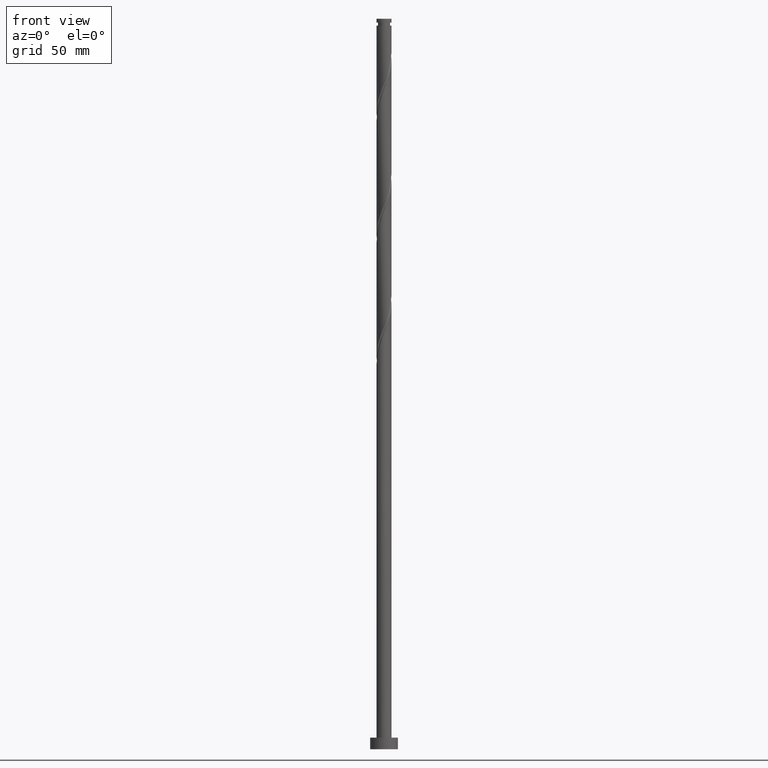
[diagram: clean part render]
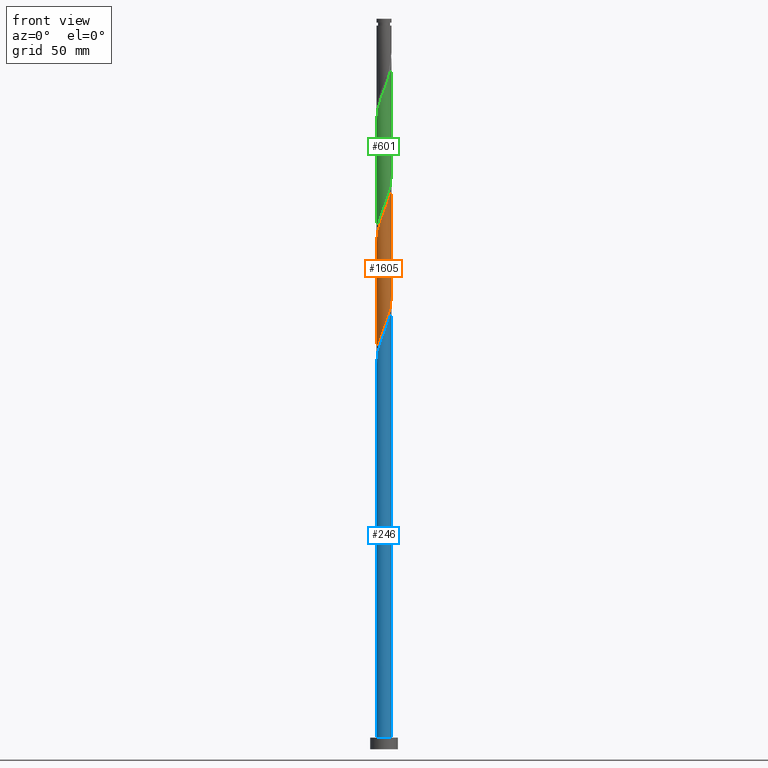
[diagram: same view with three faces highlighted in distinct colors, each labeled with its STEP entity id]
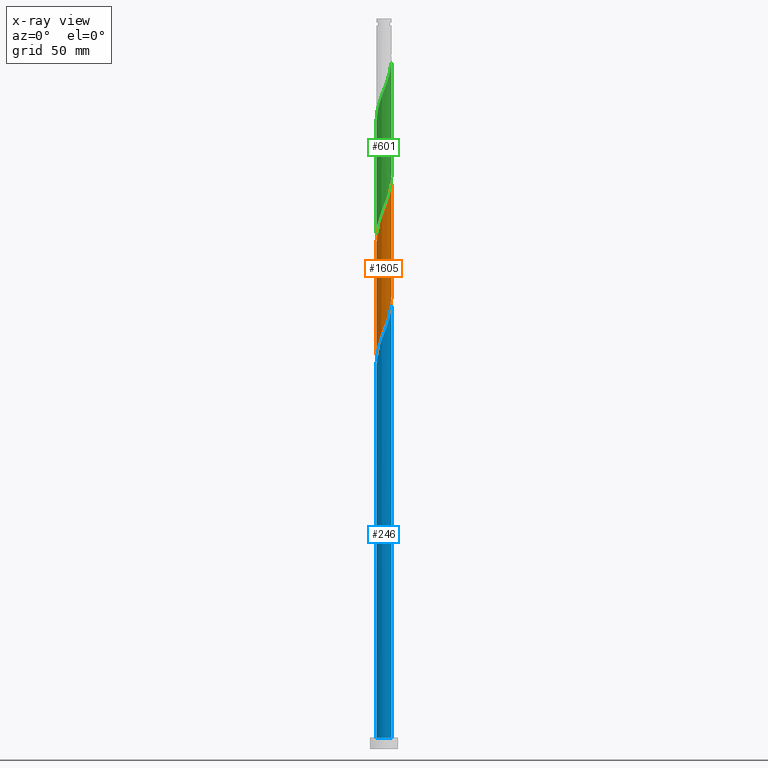
[diagram: x-ray of the same camera — body ghosted, the three highlighted faces saturated]
A machine part, front view with three faces highlighted in distinct colors.
The next image is the same camera in x-ray (body ghosted, the three faces saturated) — at least one of them is partly hidden behind the body in this view.
Their STEP definitions:

[orange] entity #1605 — the highlighted cylindrical surface (edge-blend (fillet) strip) has radius 3.25 mm, axis along (-0, -0, -1).
#2 = CARTESIAN_POINT ( 'NONE',  ( -1.005605147701159607, -3.112129696193387307, 179.8530349265506629 ) ) ;
#25 = CARTESIAN_POINT ( 'NONE',  ( 1.005605147701159829, -3.112129696193391748, 234.2280349265507198 ) ) ;
#44 = DIRECTION ( 'NONE',  ( -0.000000000000000000, -0.000000000000000000, -1.000000000000000000 ) ) ;
#53 = LINE ( 'NONE', #650, #691 ) ;
#55 = CARTESIAN_POINT ( 'NONE',  ( -2.726594891042974922, -1.806176419719337511, 174.2280349265506629 ) ) ;
#66 = CARTESIAN_POINT ( 'NONE',  ( -3.250000000000000888, -6.731523858208234460E-15, 169.3400520044567941 ) ) ;
#87 = CARTESIAN_POINT ( 'NONE',  ( 3.249058997255960257, -0.07820250859228461415, 244.5405349265506629 ) ) ;
#89 = CARTESIAN_POINT ( 'NONE',  ( 3.250000000000000444, 3.980102097228898231E-16, 315.0000000000000000 ) ) ;
#117 = EDGE_CURVE ( 'NONE', #327, #641, #976, .T. ) ;
#144 = CARTESIAN_POINT ( 'NONE',  ( 1.480171891976476362, -2.893370209669474225, 186.4155349265507198 ) ) ;
#154 = CARTESIAN_POINT ( 'NONE',  ( -0.6467418341193059694, -3.185000000000000497, 180.7905349265506914 ) ) ;
#162 = CARTESIAN_POINT ( 'NONE',  ( -3.250000000000004441, -1.559743332999460153E-15, 218.4910178486446739 ) ) ;
#200 = CARTESIAN_POINT ( 'NONE',  ( -0.4442835377220203941, -3.240247690705304162, 230.4780349265506914 ) ) ;
#211 = DIRECTION ( 'NONE',  ( -1.000000000000000000, 0.000000000000000000, 0.000000000000000000 ) ) ;
#224 = CARTESIAN_POINT ( 'NONE',  ( -2.086896333651878432, -2.491458145863658213, 225.7905349265507198 ) ) ;
#233 = CARTESIAN_POINT ( 'NONE',  ( -0.07820250859228440599, -3.249058997255960257, 231.4155349265507198 ) ) ;
#326 = CARTESIAN_POINT ( 'NONE',  ( -1.154167364233619208, -3.060145528295977524, 228.6030349265507766 ) ) ;
#327 = VERTEX_POINT ( 'NONE', #1834 ) ;
#347 = FACE_OUTER_BOUND ( 'NONE', #411, .T. ) ;
#361 = CARTESIAN_POINT ( 'NONE',  ( 2.726594891042978919, -1.806176419719340620, 239.8530349265507198 ) ) ;
#368 = CARTESIAN_POINT ( 'NONE',  ( -2.961231803342264879, -1.339255840709440593, 222.0405349265506914 ) ) ;
#411 = EDGE_LOOP ( 'NONE', ( #1316, #438, #1314, #1299 ) ) ;
#433 = CARTESIAN_POINT ( 'NONE',  ( 2.086896333651874880, -2.491458145863656437, 188.2905349265507482 ) ) ;
#438 = ORIENTED_EDGE ( 'NONE', *, *, #1644, .F. ) ;
#481 = CARTESIAN_POINT ( 'NONE',  ( -3.150196609500638179, -0.7992254509778178306, 171.4155349265506914 ) ) ;
#492 = CARTESIAN_POINT ( 'NONE',  ( -3.250000000000005329, -0.3266372899592416279, 219.3292889276082462 ) ) ;
#503 = CARTESIAN_POINT ( 'NONE',  ( -1.672906533717719357, -2.810333910491133125, 177.9780349265507198 ) ) ;
#581 = CARTESIAN_POINT ( 'NONE',  ( 3.112129696193387307, -1.005605147701159607, 192.9780349265506629 ) ) ;
#582 = VERTEX_POINT ( 'NONE', #162 ) ;
#618 = CARTESIAN_POINT ( 'NONE',  ( -2.893370209669474225, -1.480171891976476362, 173.2905349265507198 ) ) ;
#641 = VERTEX_POINT ( 'NONE', #1798 ) ;
#650 = CARTESIAN_POINT ( 'NONE',  ( -3.250000000000000444, 0.000000000000000000, 315.0000000000000000 ) ) ;
#652 = CARTESIAN_POINT ( 'NONE',  ( 0.2878785205374513878, -3.257870303806616352, 232.3530349265507198 ) ) ;
#691 = VECTOR ( 'NONE', #1235, 1000.000000000000000 ) ;
#734 = CARTESIAN_POINT ( 'NONE',  ( 0.7992254509778174976, -3.150196609500637290, 184.5405349265507198 ) ) ;
#744 = CARTESIAN_POINT ( 'NONE',  ( 3.250000000000000444, -2.716490780917736271E-15, 195.5900520044567656 ) ) ;
#762 = CARTESIAN_POINT ( 'NONE',  ( 3.250000000000001332, -0.3266372899592425716, 194.7517809254932217 ) ) ;
#771 = CARTESIAN_POINT ( 'NONE',  ( 2.491458145863658213, -2.086896333651878432, 238.9155349265507482 ) ) ;
#795 = CARTESIAN_POINT ( 'NONE',  ( -3.240247690705299721, -0.4442835377220185622, 170.4780349265506914 ) ) ;
#804 = CARTESIAN_POINT ( 'NONE',  ( -1.480171891976479248, -2.893370209669477777, 227.6655349265506914 ) ) ;
#813 = CARTESIAN_POINT ( 'NONE',  ( 0.6467418341193055253, -3.185000000000003162, 233.2905349265507198 ) ) ;
#886 = EDGE_CURVE ( 'NONE', #582, #1572, #53, .T. ) ;
#889 = CARTESIAN_POINT ( 'NONE',  ( 1.806176419719337511, -2.726594891042975810, 187.3530349265506345 ) ) ;
#917 = CARTESIAN_POINT ( 'NONE',  ( 2.256321400684337508, -2.367616247584416467, 237.9780349265507198 ) ) ;
#938 = CARTESIAN_POINT ( 'NONE',  ( 1.672906533717720690, -2.810333910491137122, 236.1030349265507482 ) ) ;
#960 = CARTESIAN_POINT ( 'NONE',  ( -2.588975079037776794, -1.964613967201029432, 223.9155349265507198 ) ) ;
#976 = LINE ( 'NONE', #89, #1148 ) ;
#1084 = CARTESIAN_POINT ( 'NONE',  ( -3.060145528295973971, -1.154167364233615878, 172.3530349265506914 ) ) ;
#1098 = CARTESIAN_POINT ( 'NONE',  ( 1.964613967201029432, -2.588975079037777682, 237.0405349265506914 ) ) ;
#1107 = CARTESIAN_POINT ( 'NONE',  ( -3.250000000000000888, -0.03910691579077120450, 169.4404146926818555 ) ) ;
#1148 = VECTOR ( 'NONE', #1729, 1000.000000000000000 ) ;
#1171 = CARTESIAN_POINT ( 'NONE',  ( 2.588975079037772797, -1.964613967201028100, 190.1655349265507198 ) ) ;
#1179 = CARTESIAN_POINT ( 'NONE',  ( 0.4442835377220184512, -3.240247690705299721, 183.6030349265506629 ) ) ;
#1206 = CARTESIAN_POINT ( 'NONE',  ( -2.256321400684335732, -2.367616247584412470, 176.1030349265506914 ) ) ;
#1226 = CARTESIAN_POINT ( 'NONE',  ( -3.250000000000001332, -6.731523858208234460E-15, 169.3400520044567941 ) ) ;
#1235 = DIRECTION ( 'NONE',  ( -0.000000000000000000, -0.000000000000000000, -1.000000000000000000 ) ) ;
#1237 = CARTESIAN_POINT ( 'NONE',  ( 1.339255840709439704, -2.961231803342264879, 235.1655349265507198 ) ) ;
#1248 = CARTESIAN_POINT ( 'NONE',  ( -1.964613967201028100, -2.588975079037772797, 177.0405349265506629 ) ) ;
#1299 = ORIENTED_EDGE ( 'NONE', *, *, #1484, .F. ) ;
#1314 = ORIENTED_EDGE ( 'NONE', *, *, #886, .T. ) ;
#1316 = ORIENTED_EDGE ( 'NONE', *, *, #117, .F. ) ;
#1324 = CARTESIAN_POINT ( 'NONE',  ( 2.810333910491132681, -1.672906533717719357, 191.1030349265506629 ) ) ;
#1362 = CARTESIAN_POINT ( 'NONE',  ( 3.060145528295977524, -1.154167364233619208, 241.7280349265507198 ) ) ;
#1396 = CARTESIAN_POINT ( 'NONE',  ( -1.339255840709439704, -2.961231803342261326, 178.9155349265506914 ) ) ;
#1411 = CARTESIAN_POINT ( 'NONE',  ( 3.150196609500639955, -0.7992254509778197180, 242.6655349265506914 ) ) ;
#1435 = CARTESIAN_POINT ( 'NONE',  ( 3.250000000000004441, 1.111970127353682058E-15, 244.7410178486446739 ) ) ;
#1475 = CARTESIAN_POINT ( 'NONE',  ( 1.154167364233615878, -3.060145528295973971, 185.4780349265507198 ) ) ;
#1484 = EDGE_CURVE ( 'NONE', #641, #1572, #1650, .T. ) ;
#1503 = CARTESIAN_POINT ( 'NONE',  ( 2.893370209669477777, -1.480171891976479914, 240.7905349265507198 ) ) ;
#1515 = CARTESIAN_POINT ( 'NONE',  ( -3.112129696193391748, -1.005605147701160051, 221.1030349265506914 ) ) ;
#1528 = CARTESIAN_POINT ( 'NONE',  ( -2.491458145863655549, -2.086896333651874880, 175.1655349265507482 ) ) ;
#1543 = CARTESIAN_POINT ( 'NONE',  ( -2.810333910491137122, -1.672906533717720690, 222.9780349265507198 ) ) ;
#1549 = CARTESIAN_POINT ( 'NONE',  ( -1.806176419719340398, -2.726594891042978919, 226.7280349265507482 ) ) ;
#1572 = VERTEX_POINT ( 'NONE', #66 ) ;
#1586 = CARTESIAN_POINT ( 'NONE',  ( 3.250000000000005329, -0.03910691579077926749, 244.6406551604195840 ) ) ;
#1605 = ADVANCED_FACE ( 'NONE', ( #347 ), #1701, .T. ) ;
#1611 = CARTESIAN_POINT ( 'NONE',  ( 2.961231803342260438, -1.339255840709439704, 192.0405349265507198 ) ) ;
#1622 = CARTESIAN_POINT ( 'NONE',  ( -0.2878785205374523870, -3.257870303806612799, 181.7280349265507198 ) ) ;
#1644 = EDGE_CURVE ( 'NONE', #582, #327, #1862, .T. ) ;
#1650 =( BOUNDED_CURVE ( )  B_SPLINE_CURVE ( 2, ( #744, #762, #1912, #581, #1611, #1324, #1171, #1770, #433, #889, #144, #1475, #734, #1179, #1779, #1622, #154, #2, #1396, #503, #1248, #1206, #1528, #55, #618, #1084, #481, #795, #1812, #1107, #1226 ),
 .UNSPECIFIED., .F., .T. ) 
 B_SPLINE_CURVE_WITH_KNOTS ( ( 3, 2, 2, 2, 2, 2, 2, 2, 2, 2, 2, 2, 2, 2, 2, 3 ),
 ( 0.8045303401299219725, 0.8125000000000000000, 0.8214285714285713969, 0.8303571428571429047, 0.8392857142857143016, 0.8482142857142856984, 0.8571428571428570953, 0.8660714285714286031, 0.8750000000000000000, 0.8839285714285713969, 0.8928571428571429047, 0.9017857142857143016, 0.9107142857142856984, 0.9196428571428570953, 0.9285714285714286031, 0.9295303401299219725 ),
 .UNSPECIFIED. ) 
 CURVE ( )  GEOMETRIC_REPRESENTATION_ITEM ( )  RATIONAL_B_SPLINE_CURVE ( ( 0.9079949616362118503, 0.9039886423360746770, 0.9090909090909415902, 0.9033747362666164626, 0.9090909090909415902, 0.9033747362666164626, 0.9090909090909415902, 0.9033747362666164626, 0.9090909090909415902, 0.9033747362666164626, 0.9090909090909415902, 0.9033747362666164626, 0.9090909090909415902, 0.9033747362666164626, 0.9090909090909415902, 0.9033747362666164626, 0.9090909090909415902, 0.9033747362666164626, 0.9090909090909415902, 0.9033747362666164626, 0.9090909090909415902, 0.9033747362666164626, 0.9090909090909415902, 0.9033747362666164626, 0.9090909090909415902, 0.9033747362666164626, 0.9090909090909415902, 0.9033747362666164626, 0.9090909090909415902, 0.9084770030214834868, 0.9079949616362118503 ) ) 
 REPRESENTATION_ITEM ( '' )  );
#1660 = CARTESIAN_POINT ( 'NONE',  ( -2.367616247584416467, -2.256321400684337508, 224.8530349265507766 ) ) ;
#1687 = CARTESIAN_POINT ( 'NONE',  ( -0.7992254509778193849, -3.150196609500639955, 229.5405349265507198 ) ) ;
#1701 = CYLINDRICAL_SURFACE ( 'NONE', #1726, 3.250000000000000444 ) ;
#1712 = CARTESIAN_POINT ( 'NONE',  ( -3.185000000000003162, -0.6467418341193056364, 220.1655349265506914 ) ) ;
#1726 = AXIS2_PLACEMENT_3D ( 'NONE', #1822, #44, #211 ) ;
#1729 = DIRECTION ( 'NONE',  ( -0.000000000000000000, -0.000000000000000000, -1.000000000000000000 ) ) ;
#1770 = CARTESIAN_POINT ( 'NONE',  ( 2.367616247584412470, -2.256321400684335732, 189.2280349265506914 ) ) ;
#1779 = CARTESIAN_POINT ( 'NONE',  ( 0.07820250859228314311, -3.249058997255956260, 182.6655349265507198 ) ) ;
#1798 = CARTESIAN_POINT ( 'NONE',  ( 3.250000000000000000, -2.716490780917736271E-15, 195.5900520044567372 ) ) ;
#1812 = CARTESIAN_POINT ( 'NONE',  ( -3.249058997255956260, -0.07820250859228332352, 169.5405349265507482 ) ) ;
#1822 = CARTESIAN_POINT ( 'NONE',  ( 0.000000000000000000, 0.000000000000000000, 315.0000000000000000 ) ) ;
#1834 = CARTESIAN_POINT ( 'NONE',  ( 3.250000000000004441, 1.111970127353682058E-15, 244.7410178486446739 ) ) ;
#1854 = CARTESIAN_POINT ( 'NONE',  ( -3.250000000000004441, -1.559743332999460153E-15, 218.4910178486446739 ) ) ;
#1862 =( BOUNDED_CURVE ( )  B_SPLINE_CURVE ( 2, ( #1854, #492, #1712, #1515, #368, #1543, #960, #1660, #224, #1549, #804, #326, #1687, #200, #233, #652, #813, #25, #1237, #938, #1098, #917, #771, #361, #1503, #1362, #1411, #1878, #87, #1586, #1435 ),
 .UNSPECIFIED., .F., .T. ) 
 B_SPLINE_CURVE_WITH_KNOTS ( ( 3, 2, 2, 2, 2, 2, 2, 2, 2, 2, 2, 2, 2, 2, 2, 3 ),
 ( 0.3045303401299219725, 0.3125000000000000000, 0.3214285714285713969, 0.3303571428571429047, 0.3392857142857143016, 0.3482142857142856984, 0.3571428571428570953, 0.3660714285714286031, 0.3750000000000000000, 0.3839285714285713969, 0.3928571428571429047, 0.4017857142857143016, 0.4107142857142856984, 0.4196428571428570953, 0.4285714285714286031, 0.4295303401299218060 ),
 .UNSPECIFIED. ) 
 CURVE ( )  GEOMETRIC_REPRESENTATION_ITEM ( )  RATIONAL_B_SPLINE_CURVE ( ( 0.9079949616362170683, 0.9039886423360800061, 0.9090909090909469192, 0.9033747362666216807, 0.9090909090909469192, 0.9033747362666216807, 0.9090909090909469192, 0.9033747362666216807, 0.9090909090909469192, 0.9033747362666216807, 0.9090909090909469192, 0.9033747362666216807, 0.9090909090909469192, 0.9033747362666216807, 0.9090909090909469192, 0.9033747362666216807, 0.9090909090909469192, 0.9033747362666216807, 0.9090909090909469192, 0.9033747362666216807, 0.9090909090909469192, 0.9033747362666216807, 0.9090909090909469192, 0.9033747362666216807, 0.9090909090909469192, 0.9033747362666216807, 0.9090909090909469192, 0.9033747362666216807, 0.9090909090909469192, 0.9084770030214888159, 0.9079949616362172904 ) ) 
 REPRESENTATION_ITEM ( '' )  );
#1878 = CARTESIAN_POINT ( 'NONE',  ( 3.240247690705303718, -0.4442835377220205051, 243.6030349265508050 ) ) ;
#1912 = CARTESIAN_POINT ( 'NONE',  ( 3.185000000000000497, -0.6467418341193061915, 193.9155349265507198 ) ) ;

[blue] entity #246 — the highlighted cylindrical surface (edge-blend (fillet) strip) has radius 3.25 mm, axis along (-0, -0, -1).
#3 = EDGE_CURVE ( 'NONE', #395, #348, #1681, .T. ) ;
#13 = DIRECTION ( 'NONE',  ( 1.000000000000000000, 0.000000000000000000, 0.000000000000000000 ) ) ;
#72 = AXIS2_PLACEMENT_3D ( 'NONE', #178, #1335, #13 ) ;
#101 = CIRCLE ( 'NONE', #72, 3.250000000000000444 ) ;
#137 = CARTESIAN_POINT ( 'NONE',  ( 0.000000000000000000, 0.000000000000000000, 315.0000000000000000 ) ) ;
#140 = CARTESIAN_POINT ( 'NONE',  ( -1.806176419719340398, -2.726594891042978919, 174.2280349265507198 ) ) ;
#171 = CARTESIAN_POINT ( 'NONE',  ( 3.250000000000005329, -0.03910691579077926749, 192.1406551604195840 ) ) ;
#178 = CARTESIAN_POINT ( 'NONE',  ( 0.000000000000000000, 0.000000000000000000, 5.000000000000000000 ) ) ;
#203 = CARTESIAN_POINT ( 'NONE',  ( 3.250000000000004441, 1.111970127353682058E-15, 192.2410178486446455 ) ) ;
#246 = ADVANCED_FACE ( 'NONE', ( #1297 ), #1152, .T. ) ;
#270 = CARTESIAN_POINT ( 'NONE',  ( -3.112129696193391748, -1.005605147701160051, 168.6030349265507766 ) ) ;
#290 = EDGE_CURVE ( 'NONE', #395, #1917, #583, .T. ) ;
#348 = VERTEX_POINT ( 'NONE', #203 ) ;
#395 = VERTEX_POINT ( 'NONE', #1348 ) ;
#412 = CARTESIAN_POINT ( 'NONE',  ( -3.250000000000004441, -1.559743332999460153E-15, 165.9910178486446171 ) ) ;
#419 = CARTESIAN_POINT ( 'NONE',  ( -0.07820250859228440599, -3.249058997255960257, 178.9155349265506914 ) ) ;
#427 = CARTESIAN_POINT ( 'NONE',  ( 1.672906533717720690, -2.810333910491137122, 183.6030349265507482 ) ) ;
#482 = ORIENTED_EDGE ( 'NONE', *, *, #290, .T. ) ;
#526 = ORIENTED_EDGE ( 'NONE', *, *, #3, .F. ) ;
#564 = AXIS2_PLACEMENT_3D ( 'NONE', #137, #1594, #716 ) ;
#583 = LINE ( 'NONE', #1615, #1902 ) ;
#606 = CARTESIAN_POINT ( 'NONE',  ( -3.250000000000000444, 0.000000000000000000, 5.000000000000000000 ) ) ;
#640 = CARTESIAN_POINT ( 'NONE',  ( 3.250000000000000444, 3.980102097228898231E-16, 5.000000000000000000 ) ) ;
#695 = CARTESIAN_POINT ( 'NONE',  ( -3.185000000000003162, -0.6467418341193056364, 167.6655349265506914 ) ) ;
#716 = DIRECTION ( 'NONE',  ( -1.000000000000000000, 0.000000000000000000, 0.000000000000000000 ) ) ;
#739 = CARTESIAN_POINT ( 'NONE',  ( 1.964613967201029432, -2.588975079037777682, 184.5405349265506914 ) ) ;
#919 = EDGE_CURVE ( 'NONE', #348, #1617, #1682, .T. ) ;
#932 = DIRECTION ( 'NONE',  ( -0.000000000000000000, -0.000000000000000000, -1.000000000000000000 ) ) ;
#966 = CARTESIAN_POINT ( 'NONE',  ( -2.810333910491137122, -1.672906533717720690, 170.4780349265507198 ) ) ;
#1030 = CARTESIAN_POINT ( 'NONE',  ( 2.491458145863658213, -2.086896333651878432, 186.4155349265506914 ) ) ;
#1053 = CARTESIAN_POINT ( 'NONE',  ( 3.250000000000000444, 3.980102097228898231E-16, 315.0000000000000000 ) ) ;
#1152 = CYLINDRICAL_SURFACE ( 'NONE', #564, 3.250000000000000444 ) ;
#1203 = CARTESIAN_POINT ( 'NONE',  ( 3.060145528295977524, -1.154167364233619208, 189.2280349265507766 ) ) ;
#1242 = CARTESIAN_POINT ( 'NONE',  ( 3.240247690705303718, -0.4442835377220205051, 191.1030349265507482 ) ) ;
#1258 = CARTESIAN_POINT ( 'NONE',  ( -2.961231803342264879, -1.339255840709440593, 169.5405349265507766 ) ) ;
#1291 = CARTESIAN_POINT ( 'NONE',  ( -3.250000000000006217, -0.3266372899592396850, 166.8292889276082462 ) ) ;
#1297 = FACE_OUTER_BOUND ( 'NONE', #1841, .T. ) ;
#1300 = CARTESIAN_POINT ( 'NONE',  ( 1.005605147701159829, -3.112129696193391748, 181.7280349265507198 ) ) ;
#1329 = CARTESIAN_POINT ( 'NONE',  ( -1.480171891976479248, -2.893370209669477777, 175.1655349265506914 ) ) ;
#1335 = DIRECTION ( 'NONE',  ( 0.000000000000000000, 0.000000000000000000, 1.000000000000000000 ) ) ;
#1340 = CARTESIAN_POINT ( 'NONE',  ( -1.154167364233619208, -3.060145528295977524, 176.1030349265507482 ) ) ;
#1348 = CARTESIAN_POINT ( 'NONE',  ( -3.250000000000004441, -1.559743332999460153E-15, 165.9910178486446171 ) ) ;
#1369 = CARTESIAN_POINT ( 'NONE',  ( 3.250000000000004441, 1.111970127353682058E-15, 192.2410178486446739 ) ) ;
#1380 = CARTESIAN_POINT ( 'NONE',  ( 3.150196609500639955, -0.7992254509778197180, 190.1655349265506914 ) ) ;
#1403 = VECTOR ( 'NONE', #1656, 1000.000000000000000 ) ;
#1441 = CARTESIAN_POINT ( 'NONE',  ( -2.086896333651878432, -2.491458145863658213, 173.2905349265507482 ) ) ;
#1450 = CARTESIAN_POINT ( 'NONE',  ( 1.339255840709439704, -2.961231803342264879, 182.6655349265507482 ) ) ;
#1458 = EDGE_CURVE ( 'NONE', #1917, #1617, #101, .T. ) ;
#1461 = CARTESIAN_POINT ( 'NONE',  ( -2.588975079037776794, -1.964613967201029432, 171.4155349265507766 ) ) ;
#1479 = CARTESIAN_POINT ( 'NONE',  ( -2.367616247584416467, -2.256321400684337508, 172.3530349265507198 ) ) ;
#1594 = DIRECTION ( 'NONE',  ( -0.000000000000000000, -0.000000000000000000, -1.000000000000000000 ) ) ;
#1597 = CARTESIAN_POINT ( 'NONE',  ( 0.6467418341193055253, -3.185000000000003162, 180.7905349265507198 ) ) ;
#1615 = CARTESIAN_POINT ( 'NONE',  ( -3.250000000000000444, 0.000000000000000000, 315.0000000000000000 ) ) ;
#1617 = VERTEX_POINT ( 'NONE', #640 ) ;
#1618 = CARTESIAN_POINT ( 'NONE',  ( 2.726594891042978919, -1.806176419719340620, 187.3530349265506914 ) ) ;
#1631 = CARTESIAN_POINT ( 'NONE',  ( 2.893370209669477777, -1.480171891976479914, 188.2905349265507198 ) ) ;
#1642 = CARTESIAN_POINT ( 'NONE',  ( -0.4442835377220203941, -3.240247690705304162, 177.9780349265507198 ) ) ;
#1656 = DIRECTION ( 'NONE',  ( -0.000000000000000000, -0.000000000000000000, -1.000000000000000000 ) ) ;
#1681 =( BOUNDED_CURVE ( )  B_SPLINE_CURVE ( 2, ( #412, #1291, #695, #270, #1258, #966, #1461, #1479, #1441, #140, #1329, #1340, #1786, #1642, #419, #1764, #1597, #1300, #1450, #427, #739, #1900, #1030, #1618, #1631, #1203, #1380, #1242, #1847, #171, #1369 ),
 .UNSPECIFIED., .F., .T. ) 
 B_SPLINE_CURVE_WITH_KNOTS ( ( 3, 2, 2, 2, 2, 2, 2, 2, 2, 2, 2, 2, 2, 2, 2, 3 ),
 ( 0.05453034012992192398, 0.06250000000000000000, 0.07142857142857139685, 0.08035714285714290472, 0.08928571428571430157, 0.09821428571428569843, 0.1071428571428570953, 0.1160714285714286031, 0.1250000000000000000, 0.1339285714285713969, 0.1428571428571429047, 0.1517857142857143016, 0.1607142857142856984, 0.1696428571428570953, 0.1785714285714286031, 0.1795303401299218060 ),
 .UNSPECIFIED. ) 
 CURVE ( )  GEOMETRIC_REPRESENTATION_ITEM ( )  RATIONAL_B_SPLINE_CURVE ( ( 0.9079949616362170683, 0.9039886423360798950, 0.9090909090909469192, 0.9033747362666216807, 0.9090909090909469192, 0.9033747362666216807, 0.9090909090909469192, 0.9033747362666216807, 0.9090909090909469192, 0.9033747362666216807, 0.9090909090909469192, 0.9033747362666216807, 0.9090909090909469192, 0.9033747362666216807, 0.9090909090909469192, 0.9033747362666216807, 0.9090909090909469192, 0.9033747362666216807, 0.9090909090909469192, 0.9033747362666216807, 0.9090909090909469192, 0.9033747362666216807, 0.9090909090909469192, 0.9033747362666216807, 0.9090909090909469192, 0.9033747362666216807, 0.9090909090909469192, 0.9033747362666216807, 0.9090909090909469192, 0.9084770030214888159, 0.9079949616362172904 ) ) 
 REPRESENTATION_ITEM ( '' )  );
#1682 = LINE ( 'NONE', #1053, #1403 ) ;
#1743 = ORIENTED_EDGE ( 'NONE', *, *, #1458, .T. ) ;
#1764 = CARTESIAN_POINT ( 'NONE',  ( 0.2878785205374513878, -3.257870303806616352, 179.8530349265507482 ) ) ;
#1786 = CARTESIAN_POINT ( 'NONE',  ( -0.7992254509778193849, -3.150196609500639955, 177.0405349265506914 ) ) ;
#1841 = EDGE_LOOP ( 'NONE', ( #1855, #526, #482, #1743 ) ) ;
#1847 = CARTESIAN_POINT ( 'NONE',  ( 3.249058997255960257, -0.07820250859228461415, 192.0405349265507198 ) ) ;
#1855 = ORIENTED_EDGE ( 'NONE', *, *, #919, .F. ) ;
#1900 = CARTESIAN_POINT ( 'NONE',  ( 2.256321400684337508, -2.367616247584416467, 185.4780349265506914 ) ) ;
#1902 = VECTOR ( 'NONE', #932, 1000.000000000000000 ) ;
#1917 = VERTEX_POINT ( 'NONE', #606 ) ;

[green] entity #601 — the highlighted cylindrical surface (edge-blend (fillet) strip) has radius 3.25 mm, axis along (-0, -0, -1).
#1 = CARTESIAN_POINT ( 'NONE',  ( 2.256321400684337508, -2.367616247584416467, 290.4780349265508335 ) ) ;
#12 = DIRECTION ( 'NONE',  ( -0.000000000000000000, -0.000000000000000000, -1.000000000000000000 ) ) ;
#18 = CARTESIAN_POINT ( 'NONE',  ( 3.185000000000000497, -0.6467418341193061915, 246.4155349265507482 ) ) ;
#23 = DIRECTION ( 'NONE',  ( -1.000000000000000000, 0.000000000000000000, 0.000000000000000000 ) ) ;
#60 = LINE ( 'NONE', #1265, #1214 ) ;
#71 = CARTESIAN_POINT ( 'NONE',  ( -1.005605147701159607, -3.112129696193387307, 232.3530349265507198 ) ) ;
#83 = CARTESIAN_POINT ( 'NONE',  ( -1.339255840709439704, -2.961231803342261326, 231.4155349265507482 ) ) ;
#115 = VERTEX_POINT ( 'NONE', #384 ) ;
#116 = CARTESIAN_POINT ( 'NONE',  ( 1.480171891976476362, -2.893370209669474225, 238.9155349265507482 ) ) ;
#125 = DIRECTION ( 'NONE',  ( -0.000000000000000000, -0.000000000000000000, -1.000000000000000000 ) ) ;
#134 = CARTESIAN_POINT ( 'NONE',  ( -1.806176419719340398, -2.726594891042978919, 279.2280349265506629 ) ) ;
#143 = CARTESIAN_POINT ( 'NONE',  ( 2.491458145863658213, -2.086896333651878432, 291.4155349265507198 ) ) ;
#183 = CARTESIAN_POINT ( 'NONE',  ( -3.250000000000000000, 2.320957782597296680E-15, 221.8400520044567372 ) ) ;
#237 = CARTESIAN_POINT ( 'NONE',  ( 0.07820250859228314311, -3.249058997255956260, 235.1655349265507198 ) ) ;
#296 = CARTESIAN_POINT ( 'NONE',  ( 3.150196609500639955, -0.7992254509778197180, 295.1655349265507766 ) ) ;
#318 = CARTESIAN_POINT ( 'NONE',  ( 2.588975079037772797, -1.964613967201028100, 242.6655349265507198 ) ) ;
#328 = VERTEX_POINT ( 'NONE', #908 ) ;
#331 = CARTESIAN_POINT ( 'NONE',  ( 1.806176419719337511, -2.726594891042975810, 239.8530349265506345 ) ) ;
#384 = CARTESIAN_POINT ( 'NONE',  ( -3.250000000000004441, 3.447853683472490698E-15, 270.9910178486447876 ) ) ;
#406 = CARTESIAN_POINT ( 'NONE',  ( 3.250000000000000444, 3.980102097228898231E-16, 315.0000000000000000 ) ) ;
#431 = CARTESIAN_POINT ( 'NONE',  ( 1.339255840709439704, -2.961231803342264879, 287.6655349265507198 ) ) ;
#445 = CARTESIAN_POINT ( 'NONE',  ( -1.480171891976479248, -2.893370209669477777, 280.1655349265507766 ) ) ;
#460 = CARTESIAN_POINT ( 'NONE',  ( -3.250000000000004441, 3.447853683472490698E-15, 270.9910178486447876 ) ) ;
#511 = CARTESIAN_POINT ( 'NONE',  ( -0.2878785205374523870, -3.257870303806612799, 234.2280349265506629 ) ) ;
#527 =( BOUNDED_CURVE ( )  B_SPLINE_CURVE ( 2, ( #765, #1350, #18, #612, #1200, #1051, #318, #1065, #1664, #331, #116, #1532, #706, #808, #237, #511, #1294, #71, #83, #1705, #678, #1408, #712, #821, #859, #1109, #1146, #1905, #1255, #975, #562 ),
 .UNSPECIFIED., .F., .T. ) 
 B_SPLINE_CURVE_WITH_KNOTS ( ( 3, 2, 2, 2, 2, 2, 2, 2, 2, 2, 2, 2, 2, 2, 2, 3 ),
 ( 0.5545303401299220836, 0.5625000000000000000, 0.5714285714285713969, 0.5803571428571429047, 0.5892857142857143016, 0.5982142857142856984, 0.6071428571428570953, 0.6160714285714286031, 0.6250000000000000000, 0.6339285714285713969, 0.6428571428571429047, 0.6517857142857143016, 0.6607142857142856984, 0.6696428571428570953, 0.6785714285714286031, 0.6795303401299221946 ),
 .UNSPECIFIED. ) 
 CURVE ( )  GEOMETRIC_REPRESENTATION_ITEM ( )  RATIONAL_B_SPLINE_CURVE ( ( 0.9079949616362117393, 0.9039886423360747880, 0.9090909090909415902, 0.9033747362666164626, 0.9090909090909415902, 0.9033747362666164626, 0.9090909090909415902, 0.9033747362666164626, 0.9090909090909415902, 0.9033747362666164626, 0.9090909090909415902, 0.9033747362666164626, 0.9090909090909415902, 0.9033747362666164626, 0.9090909090909415902, 0.9033747362666164626, 0.9090909090909415902, 0.9033747362666164626, 0.9090909090909415902, 0.9033747362666164626, 0.9090909090909415902, 0.9033747362666164626, 0.9090909090909415902, 0.9033747362666164626, 0.9090909090909415902, 0.9033747362666164626, 0.9090909090909415902, 0.9033747362666164626, 0.9090909090909415902, 0.9084770030214832648, 0.9079949616362115172 ) ) 
 REPRESENTATION_ITEM ( '' )  );
#545 = LINE ( 'NONE', #406, #876 ) ;
#562 = CARTESIAN_POINT ( 'NONE',  ( -3.250000000000000000, 2.320957782597296680E-15, 221.8400520044567372 ) ) ;
#590 = CARTESIAN_POINT ( 'NONE',  ( 3.060145528295977524, -1.154167364233619208, 294.2280349265508335 ) ) ;
#596 = ORIENTED_EDGE ( 'NONE', *, *, #1202, .T. ) ;
#601 = ADVANCED_FACE ( 'NONE', ( #882 ), #1344, .T. ) ;
#612 = CARTESIAN_POINT ( 'NONE',  ( 3.112129696193387307, -1.005605147701159607, 245.4780349265507198 ) ) ;
#616 = CARTESIAN_POINT ( 'NONE',  ( -0.7992254509778193849, -3.150196609500639955, 282.0405349265506061 ) ) ;
#625 = CARTESIAN_POINT ( 'NONE',  ( 3.249058997255960257, -0.07820250859228461415, 297.0405349265507198 ) ) ;
#661 = CARTESIAN_POINT ( 'NONE',  ( 3.250000000000005773, 6.268824879040894510E-16, 297.2410178486447307 ) ) ;
#667 = EDGE_CURVE ( 'NONE', #115, #1593, #993, .T. ) ;
#678 = CARTESIAN_POINT ( 'NONE',  ( -1.964613967201028100, -2.588975079037772797, 229.5405349265507198 ) ) ;
#706 = CARTESIAN_POINT ( 'NONE',  ( 0.7992254509778174976, -3.150196609500637290, 237.0405349265507766 ) ) ;
#712 = CARTESIAN_POINT ( 'NONE',  ( -2.491458145863655549, -2.086896333651874880, 227.6655349265507198 ) ) ;
#725 = CARTESIAN_POINT ( 'NONE',  ( -0.07820250859228440599, -3.249058997255960257, 283.9155349265507198 ) ) ;
#733 = CARTESIAN_POINT ( 'NONE',  ( 2.726594891042978919, -1.806176419719340620, 292.3530349265507766 ) ) ;
#743 = CARTESIAN_POINT ( 'NONE',  ( -2.588975079037776794, -1.964613967201029432, 276.4155349265507198 ) ) ;
#765 = CARTESIAN_POINT ( 'NONE',  ( 3.250000000000000000, -2.716490780917736271E-15, 248.0900520044567656 ) ) ;
#808 = CARTESIAN_POINT ( 'NONE',  ( 0.4442835377220184512, -3.240247690705299721, 236.1030349265506914 ) ) ;
#821 = CARTESIAN_POINT ( 'NONE',  ( -2.726594891042974922, -1.806176419719337511, 226.7280349265506629 ) ) ;
#859 = CARTESIAN_POINT ( 'NONE',  ( -2.893370209669474225, -1.480171891976476362, 225.7905349265506629 ) ) ;
#876 = VECTOR ( 'NONE', #997, 1000.000000000000000 ) ;
#882 = FACE_OUTER_BOUND ( 'NONE', #1375, .T. ) ;
#887 = ORIENTED_EDGE ( 'NONE', *, *, #1709, .F. ) ;
#904 = CARTESIAN_POINT ( 'NONE',  ( -3.112129696193391748, -1.005605147701160051, 273.6030349265507766 ) ) ;
#908 = CARTESIAN_POINT ( 'NONE',  ( 3.250000000000000000, -2.716490780917736271E-15, 248.0900520044567656 ) ) ;
#920 = ORIENTED_EDGE ( 'NONE', *, *, #667, .F. ) ;
#970 = AXIS2_PLACEMENT_3D ( 'NONE', #1058, #12, #23 ) ;
#975 = CARTESIAN_POINT ( 'NONE',  ( -3.250000000000000888, -0.03910691579076216312, 221.9404146926818555 ) ) ;
#993 =( BOUNDED_CURVE ( )  B_SPLINE_CURVE ( 2, ( #460, #1046, #1169, #904, #1778, #1191, #743, #1636, #1810, #134, #445, #1492, #616, #1334, #725, #1621, #1313, #1769, #431, #1022, #1465, #1, #143, #733, #1921, #590, #296, #1852, #625, #1526, #1501 ),
 .UNSPECIFIED., .F., .T. ) 
 B_SPLINE_CURVE_WITH_KNOTS ( ( 3, 2, 2, 2, 2, 2, 2, 2, 2, 2, 2, 2, 2, 2, 2, 3 ),
 ( 0.5545303401299220836, 0.5625000000000000000, 0.5714285714285713969, 0.5803571428571427937, 0.5892857142857143016, 0.5982142857142856984, 0.6071428571428572063, 0.6160714285714286031, 0.6250000000000000000, 0.6339285714285713969, 0.6428571428571427937, 0.6517857142857143016, 0.6607142857142856984, 0.6696428571428572063, 0.6785714285714286031, 0.6795303401299221946 ),
 .UNSPECIFIED. ) 
 CURVE ( )  GEOMETRIC_REPRESENTATION_ITEM ( )  RATIONAL_B_SPLINE_CURVE ( ( 0.9079949616362170683, 0.9039886423360800061, 0.9090909090909469192, 0.9033747362666216807, 0.9090909090909469192, 0.9033747362666216807, 0.9090909090909469192, 0.9033747362666216807, 0.9090909090909469192, 0.9033747362666216807, 0.9090909090909469192, 0.9033747362666216807, 0.9090909090909469192, 0.9033747362666216807, 0.9090909090909469192, 0.9033747362666216807, 0.9090909090909469192, 0.9033747362666216807, 0.9090909090909469192, 0.9033747362666216807, 0.9090909090909469192, 0.9033747362666216807, 0.9090909090909469192, 0.9033747362666216807, 0.9090909090909469192, 0.9033747362666216807, 0.9090909090909469192, 0.9033747362666216807, 0.9090909090909469192, 0.9084770030214885939, 0.9079949616362168463 ) ) 
 REPRESENTATION_ITEM ( '' )  );
#997 = DIRECTION ( 'NONE',  ( -0.000000000000000000, -0.000000000000000000, -1.000000000000000000 ) ) ;
#1022 = CARTESIAN_POINT ( 'NONE',  ( 1.672906533717720690, -2.810333910491137122, 288.6030349265507766 ) ) ;
#1046 = CARTESIAN_POINT ( 'NONE',  ( -3.250000000000004441, -0.3266372899592460688, 271.8292889276083315 ) ) ;
#1051 = CARTESIAN_POINT ( 'NONE',  ( 2.810333910491132681, -1.672906533717719357, 243.6030349265506629 ) ) ;
#1058 = CARTESIAN_POINT ( 'NONE',  ( 0.000000000000000000, 0.000000000000000000, 315.0000000000000000 ) ) ;
#1065 = CARTESIAN_POINT ( 'NONE',  ( 2.367616247584412470, -2.256321400684335732, 241.7280349265507198 ) ) ;
#1109 = CARTESIAN_POINT ( 'NONE',  ( -3.060145528295973971, -1.154167364233615878, 224.8530349265506914 ) ) ;
#1143 = VERTEX_POINT ( 'NONE', #183 ) ;
#1146 = CARTESIAN_POINT ( 'NONE',  ( -3.150196609500638179, -0.7992254509778178306, 223.9155349265507198 ) ) ;
#1169 = CARTESIAN_POINT ( 'NONE',  ( -3.185000000000003162, -0.6467418341193056364, 272.6655349265507198 ) ) ;
#1180 = EDGE_CURVE ( 'NONE', #328, #1143, #527, .T. ) ;
#1182 = ORIENTED_EDGE ( 'NONE', *, *, #1180, .F. ) ;
#1191 = CARTESIAN_POINT ( 'NONE',  ( -2.810333910491137122, -1.672906533717720690, 275.4780349265507198 ) ) ;
#1200 = CARTESIAN_POINT ( 'NONE',  ( 2.961231803342260438, -1.339255840709439704, 244.5405349265507198 ) ) ;
#1202 = EDGE_CURVE ( 'NONE', #115, #1143, #60, .T. ) ;
#1214 = VECTOR ( 'NONE', #125, 1000.000000000000000 ) ;
#1255 = CARTESIAN_POINT ( 'NONE',  ( -3.249058997255956260, -0.07820250859228332352, 222.0405349265507766 ) ) ;
#1265 = CARTESIAN_POINT ( 'NONE',  ( -3.250000000000000444, 0.000000000000000000, 315.0000000000000000 ) ) ;
#1294 = CARTESIAN_POINT ( 'NONE',  ( -0.6467418341193059694, -3.185000000000000497, 233.2905349265507482 ) ) ;
#1313 = CARTESIAN_POINT ( 'NONE',  ( 0.6467418341193055253, -3.185000000000003162, 285.7905349265507198 ) ) ;
#1334 = CARTESIAN_POINT ( 'NONE',  ( -0.4442835377220203941, -3.240247690705304162, 282.9780349265507766 ) ) ;
#1344 = CYLINDRICAL_SURFACE ( 'NONE', #970, 3.250000000000000444 ) ;
#1350 = CARTESIAN_POINT ( 'NONE',  ( 3.250000000000000444, -0.3266372899592469015, 247.2517809254931933 ) ) ;
#1375 = EDGE_LOOP ( 'NONE', ( #887, #920, #596, #1182 ) ) ;
#1408 = CARTESIAN_POINT ( 'NONE',  ( -2.256321400684335732, -2.367616247584412470, 228.6030349265506914 ) ) ;
#1465 = CARTESIAN_POINT ( 'NONE',  ( 1.964613967201029432, -2.588975079037777682, 289.5405349265506629 ) ) ;
#1492 = CARTESIAN_POINT ( 'NONE',  ( -1.154167364233619208, -3.060145528295977524, 281.1030349265507198 ) ) ;
#1501 = CARTESIAN_POINT ( 'NONE',  ( 3.250000000000005773, 6.268824879040894510E-16, 297.2410178486446739 ) ) ;
#1526 = CARTESIAN_POINT ( 'NONE',  ( 3.250000000000005773, -0.03910691579076341212, 297.1406551604196125 ) ) ;
#1532 = CARTESIAN_POINT ( 'NONE',  ( 1.154167364233615878, -3.060145528295973971, 237.9780349265506914 ) ) ;
#1593 = VERTEX_POINT ( 'NONE', #661 ) ;
#1621 = CARTESIAN_POINT ( 'NONE',  ( 0.2878785205374513878, -3.257870303806616352, 284.8530349265507198 ) ) ;
#1636 = CARTESIAN_POINT ( 'NONE',  ( -2.367616247584416467, -2.256321400684337508, 277.3530349265507766 ) ) ;
#1664 = CARTESIAN_POINT ( 'NONE',  ( 2.086896333651874880, -2.491458145863656437, 240.7905349265507482 ) ) ;
#1705 = CARTESIAN_POINT ( 'NONE',  ( -1.672906533717719357, -2.810333910491133125, 230.4780349265506914 ) ) ;
#1709 = EDGE_CURVE ( 'NONE', #1593, #328, #545, .T. ) ;
#1769 = CARTESIAN_POINT ( 'NONE',  ( 1.005605147701159829, -3.112129696193391748, 286.7280349265507198 ) ) ;
#1778 = CARTESIAN_POINT ( 'NONE',  ( -2.961231803342264879, -1.339255840709440593, 274.5405349265506629 ) ) ;
#1810 = CARTESIAN_POINT ( 'NONE',  ( -2.086896333651878432, -2.491458145863658213, 278.2905349265506629 ) ) ;
#1852 = CARTESIAN_POINT ( 'NONE',  ( 3.240247690705303718, -0.4442835377220205051, 296.1030349265508335 ) ) ;
#1905 = CARTESIAN_POINT ( 'NONE',  ( -3.240247690705299721, -0.4442835377220185622, 222.9780349265506629 ) ) ;
#1921 = CARTESIAN_POINT ( 'NONE',  ( 2.893370209669477777, -1.480171891976479914, 293.2905349265506629 ) ) ;